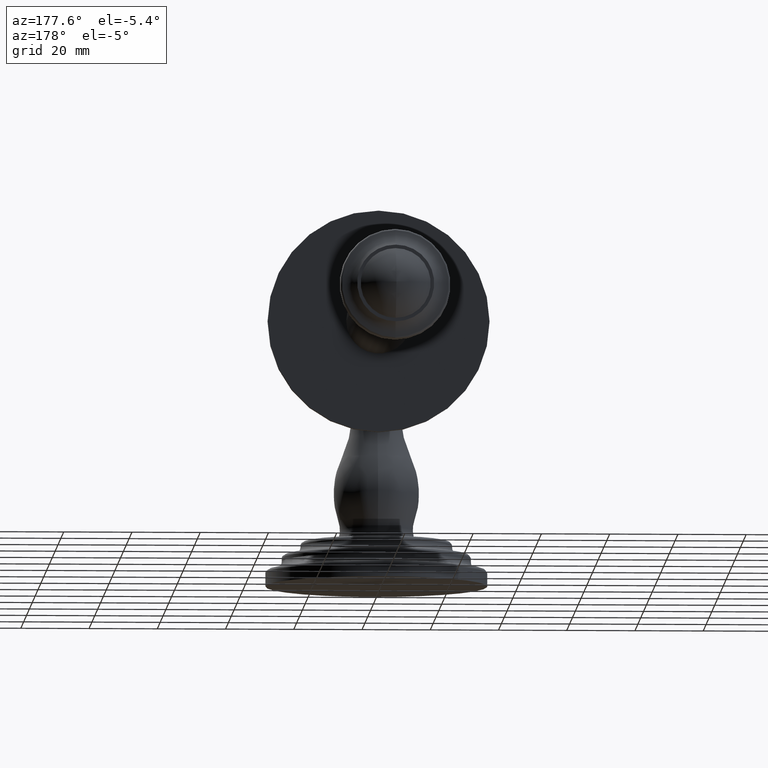
[diagram: clean part render]
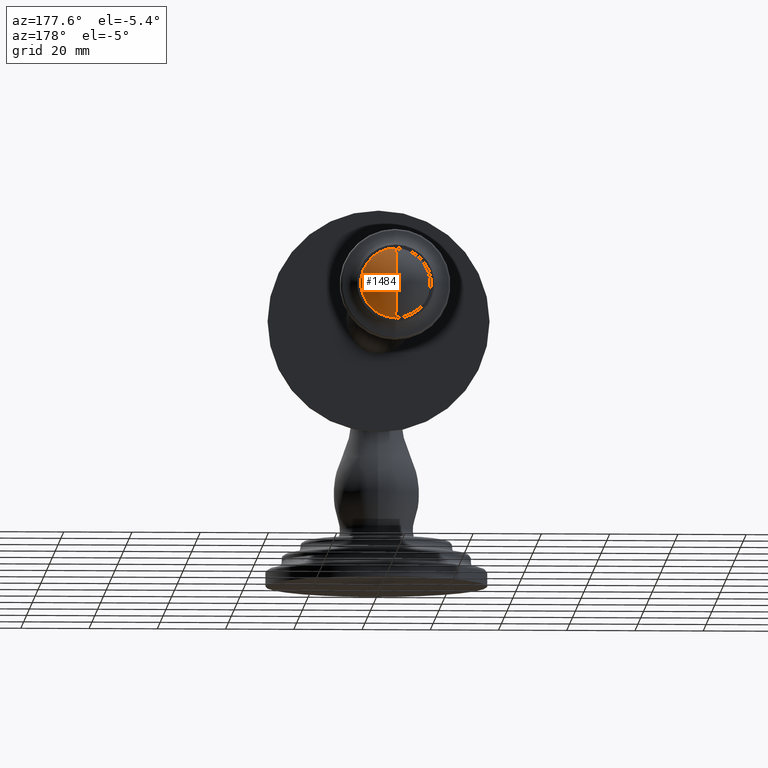
[diagram: same view with one face highlighted and labeled with its STEP entity id]
A machine part, auxiliary view. The second image highlights one B-rep face of the part: STEP entity #1484.
In plain terms, the highlighted spherical surface has radius 13.9954 mm.
Its self-contained STEP definition (entity closure, byte-faithful):
#511=CARTESIAN_POINT('',(0.E0,5.336218269811E0,3.012E0));
#512=DIRECTION('',(0.E0,-1.E0,0.E0));
#513=DIRECTION('',(0.E0,0.E0,-1.E0));
#514=AXIS2_PLACEMENT_3D('',#511,#512,#513);
#516=CARTESIAN_POINT('',(0.E0,4.961E0,3.012E0));
#517=DIRECTION('',(1.E0,0.E0,0.E0));
#518=DIRECTION('',(0.E0,6.809768962088E-1,-7.323049001815E-1));
#519=AXIS2_PLACEMENT_3D('',#516,#517,#518);
#521=CARTESIAN_POINT('',(0.E0,4.961E0,3.012E0));
#522=DIRECTION('',(-1.E0,0.E0,0.E0));
#523=DIRECTION('',(0.E0,6.809768962088E-1,7.323049001815E-1));
#524=AXIS2_PLACEMENT_3D('',#521,#522,#523);
#649=CARTESIAN_POINT('',(0.E0,5.336218269811E0,2.6085E0));
#650=CARTESIAN_POINT('',(0.E0,5.512E0,3.012E0));
#651=VERTEX_POINT('',#649);
#652=VERTEX_POINT('',#650);
#653=CARTESIAN_POINT('',(0.E0,5.336218269811E0,3.4155E0));
#654=VERTEX_POINT('',#653);
#1472=CARTESIAN_POINT('',(0.E0,4.961E0,3.012E0));
#1473=DIRECTION('',(0.E0,-1.E0,0.E0));
#1474=DIRECTION('',(0.E0,0.E0,1.E0));
#1475=AXIS2_PLACEMENT_3D('',#1472,#1473,#1474);
#1476=SPHERICAL_SURFACE('',#1475,5.51E-1);
#1478=ORIENTED_EDGE('',*,*,#1477,.F.);
#1479=ORIENTED_EDGE('',*,*,#1465,.T.);
#1481=ORIENTED_EDGE('',*,*,#1480,.T.);
#1482=EDGE_LOOP('',(#1478,#1479,#1481));
#1483=FACE_OUTER_BOUND('',#1482,.F.);
#1484=ADVANCED_FACE('',(#1483),#1476,.T.);
#515=CIRCLE('',#514,4.035E-1);
#520=CIRCLE('',#519,5.51E-1);
#525=CIRCLE('',#524,5.51E-1);
#1465=EDGE_CURVE('',#651,#654,#515,.T.);
#1477=EDGE_CURVE('',#651,#652,#520,.T.);
#1480=EDGE_CURVE('',#654,#652,#525,.T.);